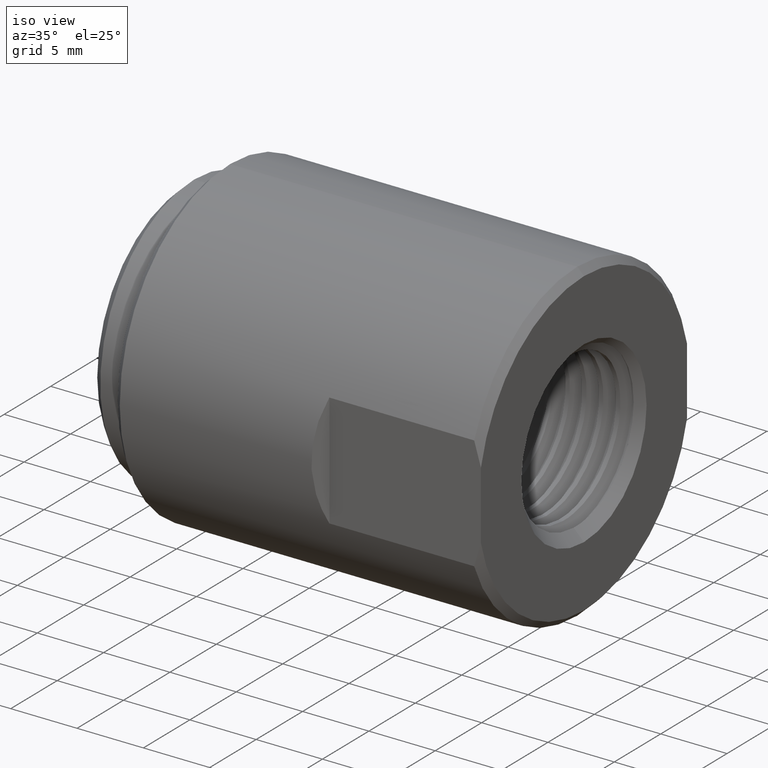
[diagram: clean part render]
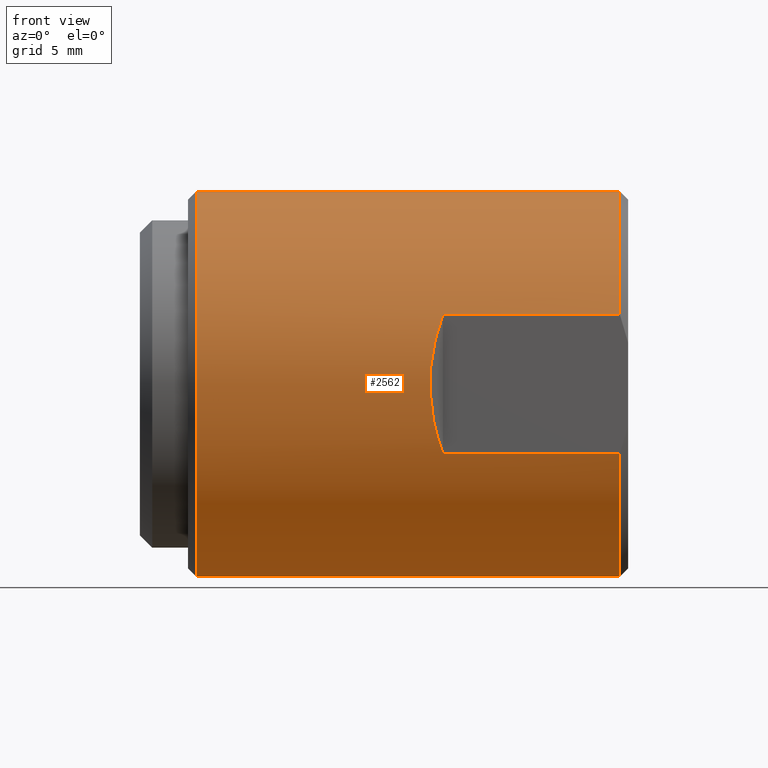
[diagram: tour spotlight — one face highlighted and labeled with its STEP entity id]
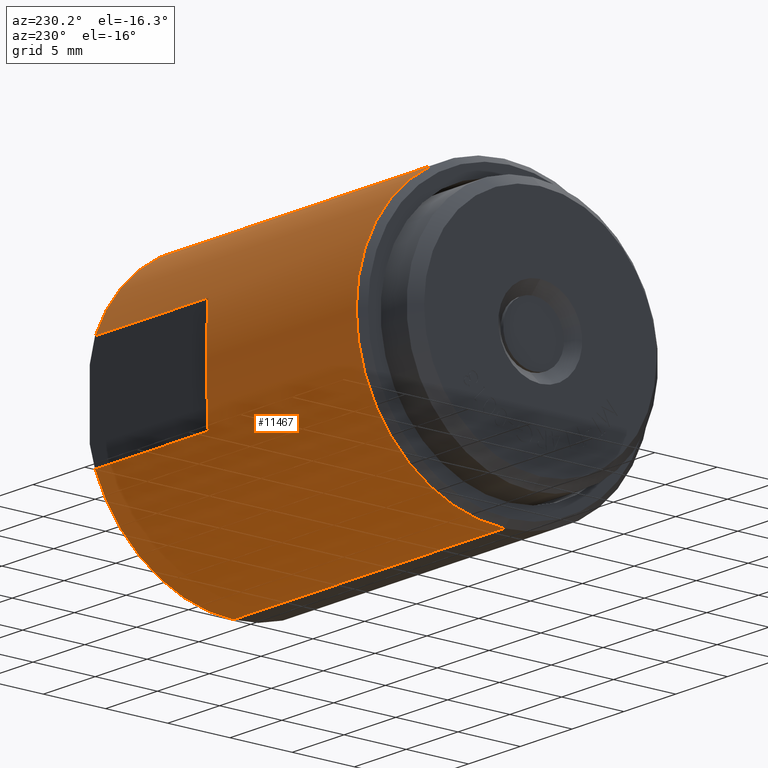
[diagram: tour spotlight — one face highlighted and labeled with its STEP entity id]
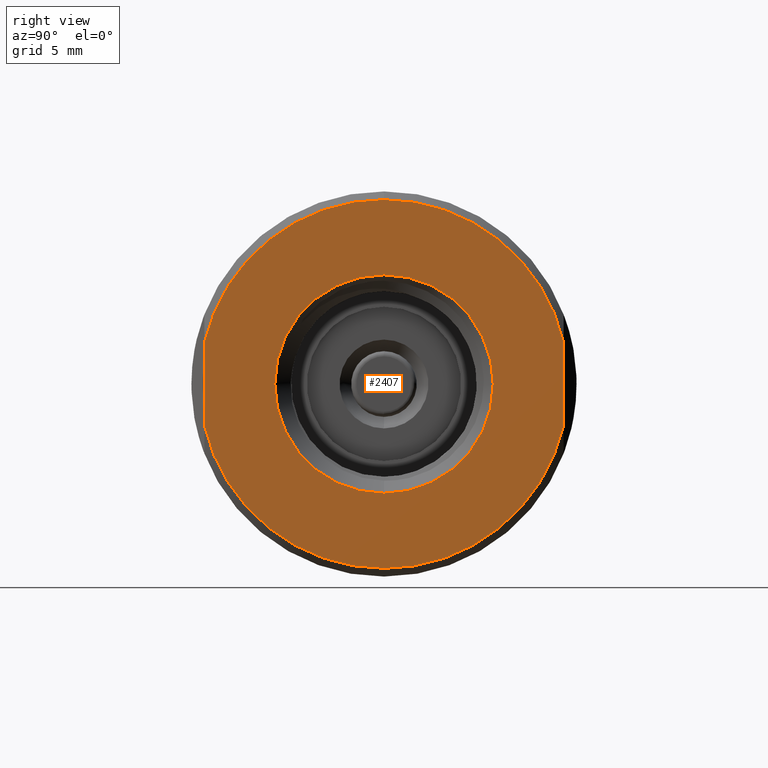
[diagram: tour spotlight — one face highlighted and labeled with its STEP entity id]
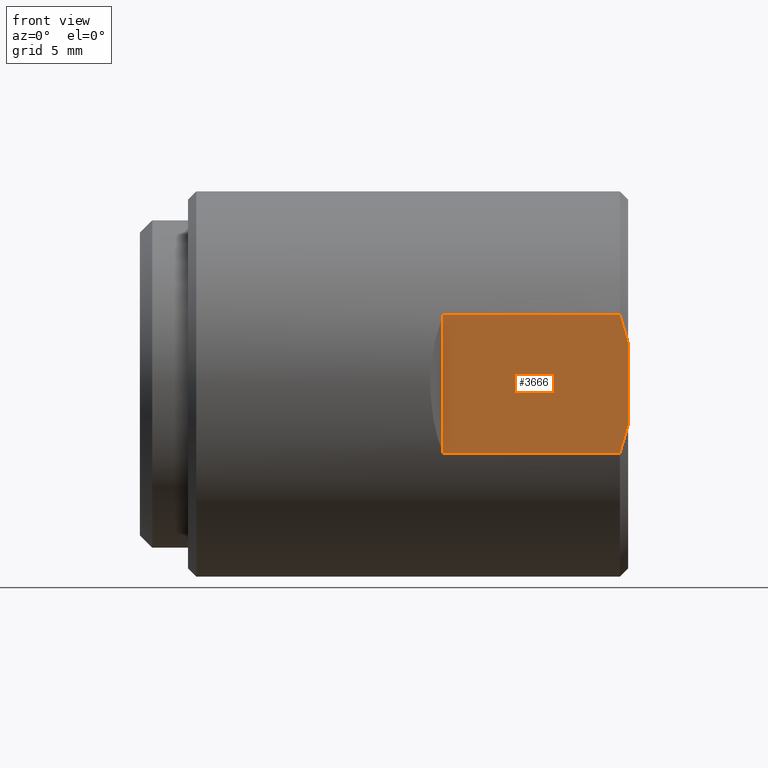
[diagram: tour spotlight — one face highlighted and labeled with its STEP entity id]
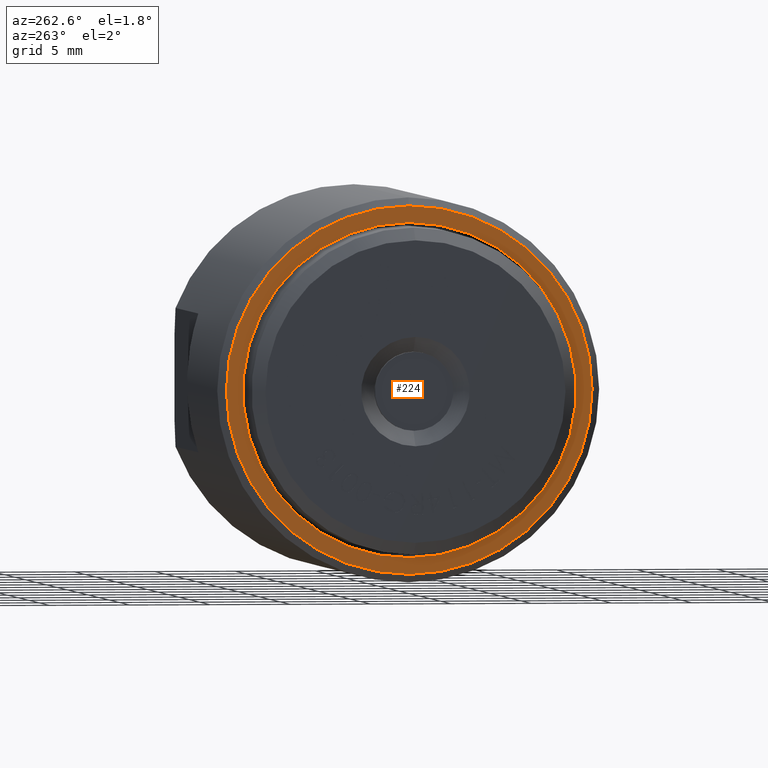
[diagram: tour spotlight — one face highlighted and labeled with its STEP entity id]
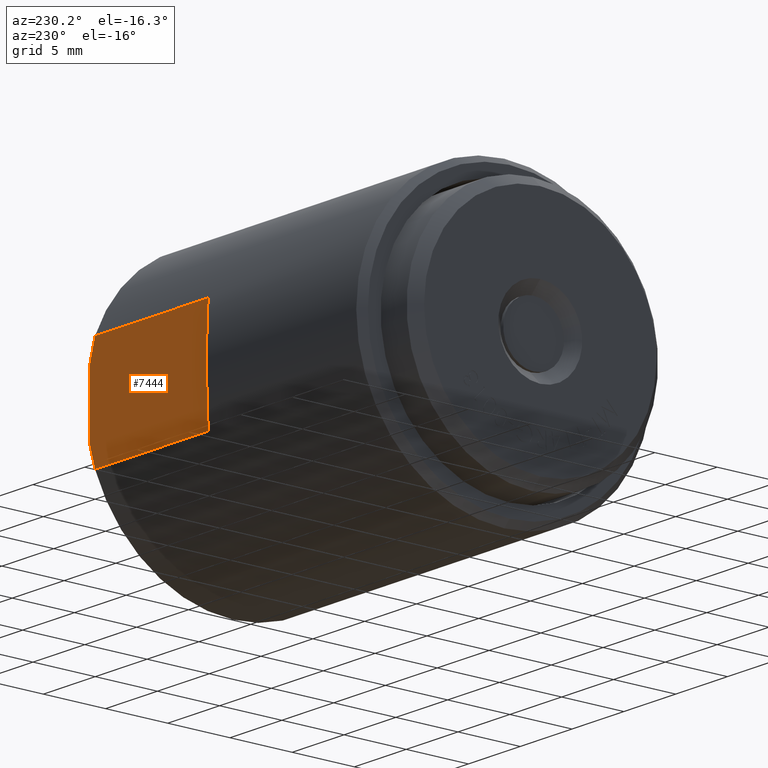
[diagram: tour spotlight — one face highlighted and labeled with its STEP entity id]
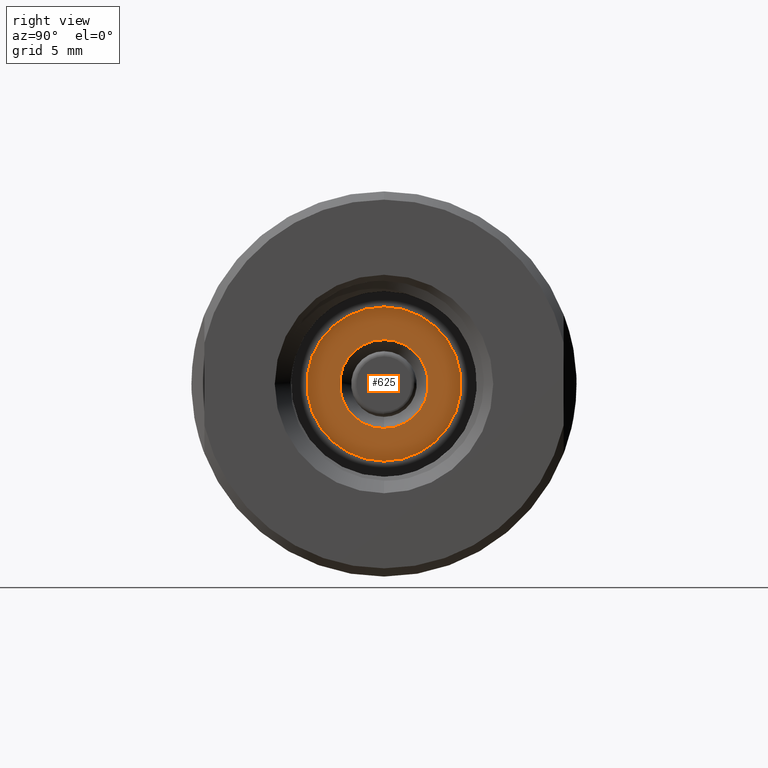
[diagram: tour spotlight — one face highlighted and labeled with its STEP entity id]
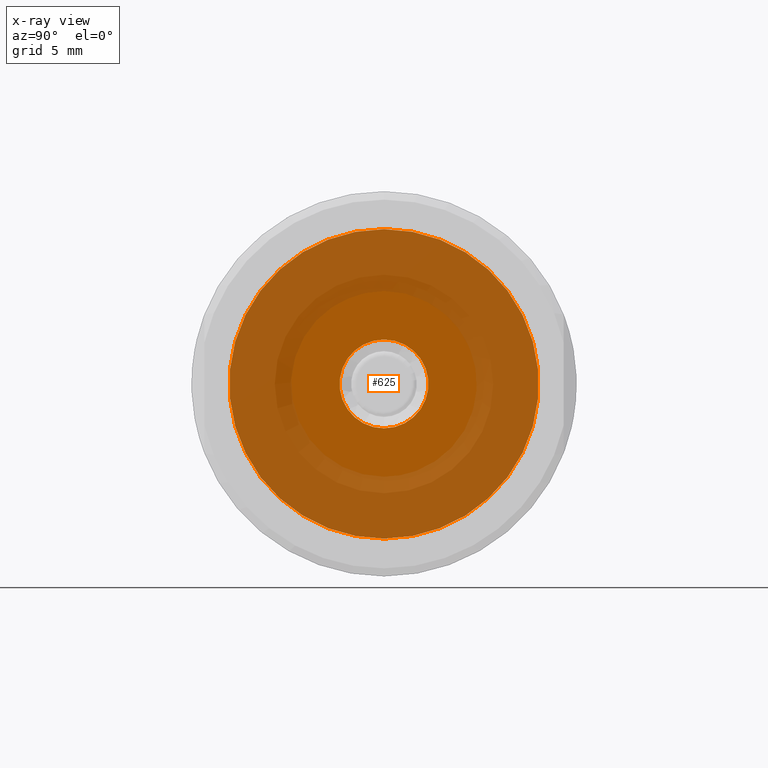
[diagram: x-ray of the same camera — body ghosted, this tour face saturated]
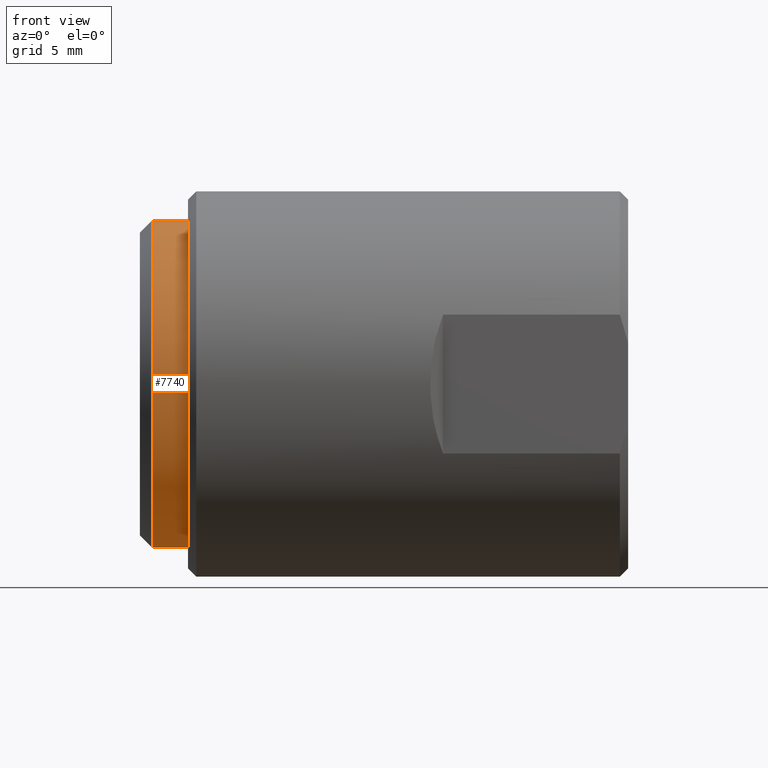
[diagram: tour spotlight — one face highlighted and labeled with its STEP entity id]
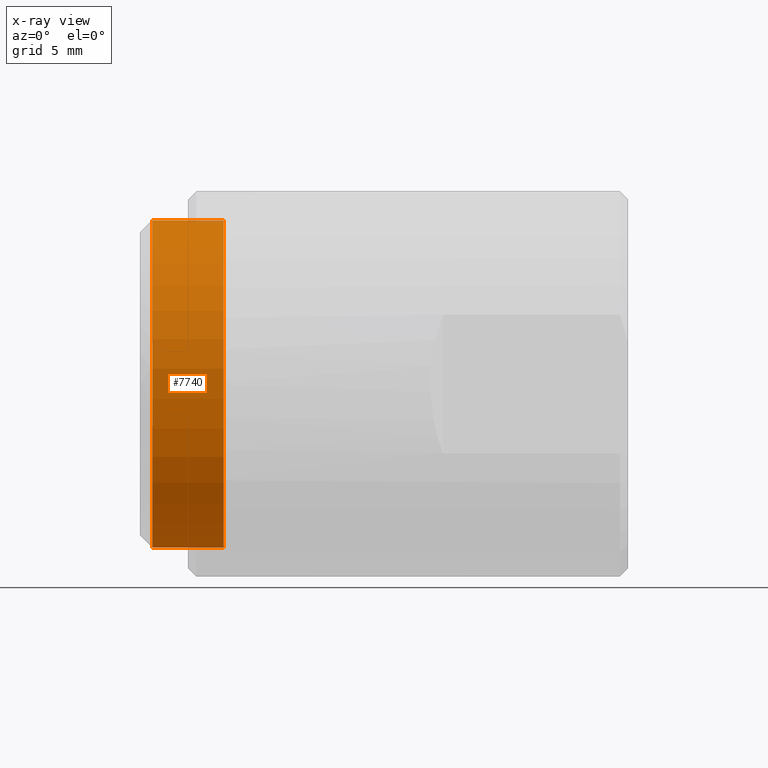
[diagram: x-ray of the same camera — body ghosted, this tour face saturated]
A machine part: a face-by-face anatomy tour. The part has 244 B-rep faces; the first image is the clean iso view, then the 8 largest visible faces are spotlighted one at a time (largest first), each with its STEP entity span.

Face 1 — front view, entity #2562. In plain terms, the highlighted cylindrical surface (partial cylindrical patch) has radius 11.8935 mm, axis along (-1, -0, -0).
Definition (entity closure, byte-faithful):
#31 = VECTOR ( 'NONE', #6852, 39.37007874015748143 ) ;
#125 = VERTEX_POINT ( 'NONE', #10418 ) ;
#211 = EDGE_CURVE ( 'NONE', #7490, #8593, #9959, .T. ) ;
#522 = EDGE_LOOP ( 'NONE', ( #8485, #3252, #1570, #2793, #5571, #8073, #5282, #8355 ) ) ;
#729 = CARTESIAN_POINT ( 'NONE',  ( 0.0000000000000000000, -0.4367499999999999716, -0.1688416417830625460 ) ) ;
#823 = CARTESIAN_POINT ( 'NONE',  ( 0.4244999999999998219, -0.4367499999999999716, 0.1688416417830625460 ) ) ;
#876 = CARTESIAN_POINT ( 'NONE',  ( 0.3820069871436555520, -0.4792430128563444081, 0.05892312186690461251 ) ) ;
#1050 = CARTESIAN_POINT ( 'NONE',  ( 0.4244999999999998219, -0.4367499999999999716, 0.1688416417830625460 ) ) ;
#1090 = DIRECTION ( 'NONE',  ( -1.000000000000000000, -0.0000000000000000000, -0.0000000000000000000 ) ) ;
#1122 = DIRECTION ( 'NONE',  ( 0.0000000000000000000, 0.0000000000000000000, 1.000000000000000000 ) ) ;
#1245 = CARTESIAN_POINT ( 'NONE',  ( 0.8544999999999998153, 5.734408637007481329E-17, -0.4682499999999999996 ) ) ;
#1362 = CARTESIAN_POINT ( 'NONE',  ( 0.8544999999999998153, 0.0000000000000000000, 0.0000000000000000000 ) ) ;
#1570 = ORIENTED_EDGE ( 'NONE', *, *, #6491, .F. ) ;
#1631 = LINE ( 'NONE', #729, #11593 ) ;
#1660 = VERTEX_POINT ( 'NONE', #823 ) ;
#1674 = CARTESIAN_POINT ( 'NONE',  ( 0.4244999999999998219, -0.4367499999999999716, -0.1688416417830625460 ) ) ;
#1718 = CARTESIAN_POINT ( 'NONE',  ( 0.3820069871436555520, -0.4792430128563444081, -0.05892312186690450149 ) ) ;
#1766 = EDGE_CURVE ( 'NONE', #10477, #1660, #10239, .T. ) ;
#2145 = CARTESIAN_POINT ( 'NONE',  ( 0.0000000000000000000, 0.0000000000000000000, 0.0000000000000000000 ) ) ;
#2151 = CIRCLE ( 'NONE', #5374, 0.4682499999999999996 ) ;
#2166 = AXIS2_PLACEMENT_3D ( 'NONE', #10720, #2606, #8064 ) ;
#2259 = FACE_OUTER_BOUND ( 'NONE', #522, .T. ) ;
#2562 = ADVANCED_FACE ( 'NONE', ( #2259 ), #11212, .T. ) ;
#2603 = CARTESIAN_POINT ( 'NONE',  ( -0.1755000000000000171, 0.0000000000000000000, 0.4682499999999999996 ) ) ;
#2606 = DIRECTION ( 'NONE',  ( -1.000000000000000000, -0.0000000000000000000, -0.0000000000000000000 ) ) ;
#2793 = ORIENTED_EDGE ( 'NONE', *, *, #11610, .F. ) ;
#2794 = VECTOR ( 'NONE', #10186, 39.37007874015748143 ) ;
#3252 = ORIENTED_EDGE ( 'NONE', *, *, #211, .T. ) ;
#3685 = CARTESIAN_POINT ( 'NONE',  ( 0.4244999999999998219, -0.4367499999999999716, -0.1688416417830625460 ) ) ;
#3912 = LINE ( 'NONE', #9519, #31 ) ;
#4214 = DIRECTION ( 'NONE',  ( -1.000000000000000000, -0.0000000000000000000, -0.0000000000000000000 ) ) ;
#4297 = AXIS2_PLACEMENT_3D ( 'NONE', #10221, #1090, #7377 ) ;
#4685 = CARTESIAN_POINT ( 'NONE',  ( 0.0000000000000000000, -0.4367499999999999716, 0.1688416417830625460 ) ) ;
#4753 = DIRECTION ( 'NONE',  ( 1.000000000000000000, 0.0000000000000000000, 0.0000000000000000000 ) ) ;
#4758 = CARTESIAN_POINT ( 'NONE',  ( 0.8544999999999998153, -0.4367499999999999716, -0.1688416417830625460 ) ) ;
#4906 = EDGE_CURVE ( 'NONE', #125, #9430, #9553, .T. ) ;
#5282 = ORIENTED_EDGE ( 'NONE', *, *, #7889, .T. ) ;
#5374 = AXIS2_PLACEMENT_3D ( 'NONE', #1362, #11271, #1122 ) ;
#5571 = ORIENTED_EDGE ( 'NONE', *, *, #1766, .F. ) ;
#5759 = DIRECTION ( 'NONE',  ( 0.0000000000000000000, 0.0000000000000000000, 1.000000000000000000 ) ) ;
#6462 = VECTOR ( 'NONE', #4214, 39.37007874015748143 ) ;
#6491 = EDGE_CURVE ( 'NONE', #11191, #8593, #1631, .T. ) ;
#6852 = DIRECTION ( 'NONE',  ( -1.000000000000000000, -0.0000000000000000000, -0.0000000000000000000 ) ) ;
#7377 = DIRECTION ( 'NONE',  ( 0.0000000000000000000, 0.0000000000000000000, 1.000000000000000000 ) ) ;
#7426 = CARTESIAN_POINT ( 'NONE',  ( 0.8544999999999998153, 0.0000000000000000000, 0.4682499999999999996 ) ) ;
#7490 = VERTEX_POINT ( 'NONE', #1245 ) ;
#7520 = AXIS2_PLACEMENT_3D ( 'NONE', #2145, #9487, #5759 ) ;
#7889 = EDGE_CURVE ( 'NONE', #8418, #9430, #8655, .T. ) ;
#8064 = DIRECTION ( 'NONE',  ( 0.0000000000000000000, 0.0000000000000000000, 1.000000000000000000 ) ) ;
#8073 = ORIENTED_EDGE ( 'NONE', *, *, #11023, .T. ) ;
#8104 = EDGE_CURVE ( 'NONE', #7490, #125, #3912, .T. ) ;
#8188 =( BOUNDED_CURVE ( )  B_SPLINE_CURVE ( 3, ( #1050, #876, #1718, #3685 ),
 .UNSPECIFIED., .F., .F. ) 
 B_SPLINE_CURVE_WITH_KNOTS ( ( 4, 4 ),
 ( 5.914295526733510222, 6.652075087625662242 ),
 .UNSPECIFIED. ) 
 CURVE ( )  GEOMETRIC_REPRESENTATION_ITEM ( )  RATIONAL_B_SPLINE_CURVE ( ( 1.000000000000000000, 0.9551521623064600508, 0.9551521623064600508, 1.000000000000000000 ) ) 
 REPRESENTATION_ITEM ( '' )  );
#8355 = ORIENTED_EDGE ( 'NONE', *, *, #4906, .F. ) ;
#8418 = VERTEX_POINT ( 'NONE', #7426 ) ;
#8485 = ORIENTED_EDGE ( 'NONE', *, *, #8104, .F. ) ;
#8593 = VERTEX_POINT ( 'NONE', #4758 ) ;
#8655 = LINE ( 'NONE', #10247, #6462 ) ;
#9072 = CARTESIAN_POINT ( 'NONE',  ( 0.8544999999999998153, -0.4367499999999999716, 0.1688416417830625460 ) ) ;
#9430 = VERTEX_POINT ( 'NONE', #2603 ) ;
#9487 = DIRECTION ( 'NONE',  ( -1.000000000000000000, -0.0000000000000000000, -0.0000000000000000000 ) ) ;
#9519 = CARTESIAN_POINT ( 'NONE',  ( 0.0000000000000000000, 5.734408637007481329E-17, -0.4682499999999999996 ) ) ;
#9553 = CIRCLE ( 'NONE', #2166, 0.4682499999999999996 ) ;
#9959 = CIRCLE ( 'NONE', #4297, 0.4682499999999999996 ) ;
#10186 = DIRECTION ( 'NONE',  ( -1.000000000000000000, -0.0000000000000000000, -0.0000000000000000000 ) ) ;
#10221 = CARTESIAN_POINT ( 'NONE',  ( 0.8544999999999998153, 0.0000000000000000000, 0.0000000000000000000 ) ) ;
#10239 = LINE ( 'NONE', #4685, #2794 ) ;
#10247 = CARTESIAN_POINT ( 'NONE',  ( 0.0000000000000000000, 0.0000000000000000000, 0.4682499999999999996 ) ) ;
#10418 = CARTESIAN_POINT ( 'NONE',  ( -0.1755000000000000171, 5.734408637007481329E-17, -0.4682499999999999996 ) ) ;
#10477 = VERTEX_POINT ( 'NONE', #9072 ) ;
#10720 = CARTESIAN_POINT ( 'NONE',  ( -0.1755000000000000171, 0.0000000000000000000, 0.0000000000000000000 ) ) ;
#11023 = EDGE_CURVE ( 'NONE', #10477, #8418, #2151, .T. ) ;
#11191 = VERTEX_POINT ( 'NONE', #1674 ) ;
#11212 = CYLINDRICAL_SURFACE ( 'NONE', #7520, 0.4682499999999999996 ) ;
#11271 = DIRECTION ( 'NONE',  ( -1.000000000000000000, -0.0000000000000000000, -0.0000000000000000000 ) ) ;
#11593 = VECTOR ( 'NONE', #4753, 39.37007874015748143 ) ;
#11610 = EDGE_CURVE ( 'NONE', #1660, #11191, #8188, .T. ) ;

Face 2 — auxiliary view, entity #11467. In plain terms, the highlighted cylindrical surface (partial cylindrical patch) has radius 11.8935 mm, axis along (-1, -0, -0).
Definition (entity closure, byte-faithful):
#31 = VECTOR ( 'NONE', #6852, 39.37007874015748143 ) ;
#125 = VERTEX_POINT ( 'NONE', #10418 ) ;
#525 = ORIENTED_EDGE ( 'NONE', *, *, #7889, .F. ) ;
#689 = ORIENTED_EDGE ( 'NONE', *, *, #3631, .F. ) ;
#837 = CARTESIAN_POINT ( 'NONE',  ( 0.0000000000000000000, 0.4367499999999999716, -0.1688416417830625460 ) ) ;
#982 = AXIS2_PLACEMENT_3D ( 'NONE', #2497, #11388, #2440 ) ;
#1206 = EDGE_CURVE ( 'NONE', #9420, #3863, #8968, .T. ) ;
#1245 = CARTESIAN_POINT ( 'NONE',  ( 0.8544999999999998153, 5.734408637007481329E-17, -0.4682499999999999996 ) ) ;
#1350 =( BOUNDED_CURVE ( )  B_SPLINE_CURVE ( 3, ( #5719, #7609, #3902, #3116 ),
 .UNSPECIFIED., .F., .F. ) 
 B_SPLINE_CURVE_WITH_KNOTS ( ( 4, 4 ),
 ( 5.914295526733510222, 6.652075087625662242 ),
 .UNSPECIFIED. ) 
 CURVE ( )  GEOMETRIC_REPRESENTATION_ITEM ( )  RATIONAL_B_SPLINE_CURVE ( ( 1.000000000000000000, 0.9551521623064600508, 0.9551521623064600508, 1.000000000000000000 ) ) 
 REPRESENTATION_ITEM ( '' )  );
#1616 = DIRECTION ( 'NONE',  ( 0.0000000000000000000, 0.0000000000000000000, 1.000000000000000000 ) ) ;
#1722 = VERTEX_POINT ( 'NONE', #9124 ) ;
#2020 = CIRCLE ( 'NONE', #8086, 0.4682499999999999996 ) ;
#2440 = DIRECTION ( 'NONE',  ( 0.0000000000000000000, 0.0000000000000000000, 1.000000000000000000 ) ) ;
#2497 = CARTESIAN_POINT ( 'NONE',  ( 0.0000000000000000000, 0.0000000000000000000, 0.0000000000000000000 ) ) ;
#2507 = DIRECTION ( 'NONE',  ( -1.000000000000000000, -0.0000000000000000000, -0.0000000000000000000 ) ) ;
#2603 = CARTESIAN_POINT ( 'NONE',  ( -0.1755000000000000171, 0.0000000000000000000, 0.4682499999999999996 ) ) ;
#2615 = CYLINDRICAL_SURFACE ( 'NONE', #982, 0.4682499999999999996 ) ;
#2618 = CIRCLE ( 'NONE', #11122, 0.4682499999999999996 ) ;
#2704 = ORIENTED_EDGE ( 'NONE', *, *, #1206, .F. ) ;
#2762 = EDGE_CURVE ( 'NONE', #8418, #7931, #2618, .T. ) ;
#3116 = CARTESIAN_POINT ( 'NONE',  ( 0.4244999999999998219, 0.4367499999999999716, 0.1688416417830625460 ) ) ;
#3631 = EDGE_CURVE ( 'NONE', #3863, #1722, #1350, .T. ) ;
#3665 = CARTESIAN_POINT ( 'NONE',  ( -0.1755000000000000171, 0.0000000000000000000, 0.0000000000000000000 ) ) ;
#3863 = VERTEX_POINT ( 'NONE', #9659 ) ;
#3902 = CARTESIAN_POINT ( 'NONE',  ( 0.3820069871436555520, 0.4792430128563444081, 0.05892312186690450149 ) ) ;
#3912 = LINE ( 'NONE', #9519, #31 ) ;
#4023 = CARTESIAN_POINT ( 'NONE',  ( 0.0000000000000000000, 0.4367499999999999716, 0.1688416417830625460 ) ) ;
#4214 = DIRECTION ( 'NONE',  ( -1.000000000000000000, -0.0000000000000000000, -0.0000000000000000000 ) ) ;
#4308 = CARTESIAN_POINT ( 'NONE',  ( 0.8544999999999998153, 0.0000000000000000000, 0.0000000000000000000 ) ) ;
#4385 = CARTESIAN_POINT ( 'NONE',  ( 0.8544999999999998153, 0.4367499999999999716, -0.1688416417830625460 ) ) ;
#4976 = EDGE_LOOP ( 'NONE', ( #11313, #8380, #8676, #525, #8005, #6423, #689, #2704 ) ) ;
#5202 = EDGE_CURVE ( 'NONE', #9430, #125, #2020, .T. ) ;
#5274 = CARTESIAN_POINT ( 'NONE',  ( 0.8544999999999998153, 0.4367499999999999716, 0.1688416417830625460 ) ) ;
#5524 = AXIS2_PLACEMENT_3D ( 'NONE', #4308, #9923, #6245 ) ;
#5719 = CARTESIAN_POINT ( 'NONE',  ( 0.4244999999999998219, 0.4367499999999999716, -0.1688416417830625460 ) ) ;
#6081 = CIRCLE ( 'NONE', #5524, 0.4682499999999999996 ) ;
#6245 = DIRECTION ( 'NONE',  ( 0.0000000000000000000, 0.0000000000000000000, 1.000000000000000000 ) ) ;
#6423 = ORIENTED_EDGE ( 'NONE', *, *, #8118, .F. ) ;
#6462 = VECTOR ( 'NONE', #4214, 39.37007874015748143 ) ;
#6852 = DIRECTION ( 'NONE',  ( -1.000000000000000000, -0.0000000000000000000, -0.0000000000000000000 ) ) ;
#7029 = DIRECTION ( 'NONE',  ( 0.0000000000000000000, 0.0000000000000000000, 1.000000000000000000 ) ) ;
#7382 = EDGE_CURVE ( 'NONE', #9420, #7490, #6081, .T. ) ;
#7426 = CARTESIAN_POINT ( 'NONE',  ( 0.8544999999999998153, 0.0000000000000000000, 0.4682499999999999996 ) ) ;
#7490 = VERTEX_POINT ( 'NONE', #1245 ) ;
#7508 = DIRECTION ( 'NONE',  ( 1.000000000000000000, 0.0000000000000000000, 0.0000000000000000000 ) ) ;
#7609 = CARTESIAN_POINT ( 'NONE',  ( 0.3820069871436555520, 0.4792430128563444081, -0.05892312186690461251 ) ) ;
#7836 = FACE_OUTER_BOUND ( 'NONE', #4976, .T. ) ;
#7889 = EDGE_CURVE ( 'NONE', #8418, #9430, #8655, .T. ) ;
#7931 = VERTEX_POINT ( 'NONE', #5274 ) ;
#8005 = ORIENTED_EDGE ( 'NONE', *, *, #2762, .T. ) ;
#8086 = AXIS2_PLACEMENT_3D ( 'NONE', #3665, #9697, #7029 ) ;
#8091 = DIRECTION ( 'NONE',  ( -1.000000000000000000, -0.0000000000000000000, -0.0000000000000000000 ) ) ;
#8104 = EDGE_CURVE ( 'NONE', #7490, #125, #3912, .T. ) ;
#8118 = EDGE_CURVE ( 'NONE', #1722, #7931, #8577, .T. ) ;
#8380 = ORIENTED_EDGE ( 'NONE', *, *, #8104, .T. ) ;
#8418 = VERTEX_POINT ( 'NONE', #7426 ) ;
#8577 = LINE ( 'NONE', #4023, #8748 ) ;
#8655 = LINE ( 'NONE', #10247, #6462 ) ;
#8676 = ORIENTED_EDGE ( 'NONE', *, *, #5202, .F. ) ;
#8748 = VECTOR ( 'NONE', #7508, 39.37007874015748143 ) ;
#8968 = LINE ( 'NONE', #837, #11298 ) ;
#9124 = CARTESIAN_POINT ( 'NONE',  ( 0.4244999999999998219, 0.4367499999999999716, 0.1688416417830625460 ) ) ;
#9420 = VERTEX_POINT ( 'NONE', #4385 ) ;
#9430 = VERTEX_POINT ( 'NONE', #2603 ) ;
#9519 = CARTESIAN_POINT ( 'NONE',  ( 0.0000000000000000000, 5.734408637007481329E-17, -0.4682499999999999996 ) ) ;
#9612 = CARTESIAN_POINT ( 'NONE',  ( 0.8544999999999998153, 0.0000000000000000000, 0.0000000000000000000 ) ) ;
#9659 = CARTESIAN_POINT ( 'NONE',  ( 0.4244999999999998219, 0.4367499999999999716, -0.1688416417830625460 ) ) ;
#9697 = DIRECTION ( 'NONE',  ( -1.000000000000000000, -0.0000000000000000000, -0.0000000000000000000 ) ) ;
#9923 = DIRECTION ( 'NONE',  ( -1.000000000000000000, -0.0000000000000000000, -0.0000000000000000000 ) ) ;
#10247 = CARTESIAN_POINT ( 'NONE',  ( 0.0000000000000000000, 0.0000000000000000000, 0.4682499999999999996 ) ) ;
#10418 = CARTESIAN_POINT ( 'NONE',  ( -0.1755000000000000171, 5.734408637007481329E-17, -0.4682499999999999996 ) ) ;
#11122 = AXIS2_PLACEMENT_3D ( 'NONE', #9612, #2507, #1616 ) ;
#11298 = VECTOR ( 'NONE', #8091, 39.37007874015748143 ) ;
#11313 = ORIENTED_EDGE ( 'NONE', *, *, #7382, .T. ) ;
#11388 = DIRECTION ( 'NONE',  ( -1.000000000000000000, -0.0000000000000000000, -0.0000000000000000000 ) ) ;
#11467 = ADVANCED_FACE ( 'NONE', ( #7836 ), #2615, .T. ) ;

Face 3 — right view, entity #2407. In plain terms, the highlighted planar face has unit normal (1, 0, 0).
Definition (entity closure, byte-faithful):
#959 = FACE_BOUND ( 'NONE', #4675, .T. ) ;
#1619 = DIRECTION ( 'NONE',  ( -1.000000000000000000, -0.0000000000000000000, -0.0000000000000000000 ) ) ;
#1862 = DIRECTION ( 'NONE',  ( 1.000000000000000000, 0.0000000000000000000, 0.0000000000000000000 ) ) ;
#1954 = VERTEX_POINT ( 'NONE', #4443 ) ;
#1995 = DIRECTION ( 'NONE',  ( 0.0000000000000000000, 0.0000000000000000000, 1.000000000000000000 ) ) ;
#2407 = ADVANCED_FACE ( 'NONE', ( #9204, #959 ), #6472, .T. ) ;
#2441 = ORIENTED_EDGE ( 'NONE', *, *, #8839, .T. ) ;
#2538 = LINE ( 'NONE', #11618, #11004 ) ;
#2617 = VERTEX_POINT ( 'NONE', #11160 ) ;
#2665 = DIRECTION ( 'NONE',  ( -1.000000000000000000, -0.0000000000000000000, -0.0000000000000000000 ) ) ;
#2671 = VERTEX_POINT ( 'NONE', #7713 ) ;
#2697 = AXIS2_PLACEMENT_3D ( 'NONE', #4351, #1619, #5292 ) ;
#2907 = ORIENTED_EDGE ( 'NONE', *, *, #8466, .T. ) ;
#3649 = EDGE_CURVE ( 'NONE', #4473, #2671, #10878, .T. ) ;
#3903 = EDGE_CURVE ( 'NONE', #6610, #1954, #10486, .T. ) ;
#3940 = CARTESIAN_POINT ( 'NONE',  ( 0.8744999999999999440, 0.4367499999999999716, -0.4682499999999999996 ) ) ;
#4200 = VECTOR ( 'NONE', #7539, 39.37007874015748143 ) ;
#4351 = CARTESIAN_POINT ( 'NONE',  ( 0.8744999999999999440, 0.0000000000000000000, 0.0000000000000000000 ) ) ;
#4443 = CARTESIAN_POINT ( 'NONE',  ( 0.8744999999999999440, 0.4367499999999999716, 0.1008835962879991721 ) ) ;
#4473 = VERTEX_POINT ( 'NONE', #6178 ) ;
#4593 = DIRECTION ( 'NONE',  ( 0.0000000000000000000, 0.0000000000000000000, -1.000000000000000000 ) ) ;
#4657 = CARTESIAN_POINT ( 'NONE',  ( 0.8744999999999999440, 0.0000000000000000000, 0.0000000000000000000 ) ) ;
#4675 = EDGE_LOOP ( 'NONE', ( #2441, #2907 ) ) ;
#4960 = CIRCLE ( 'NONE', #10454, 0.2656250000000001665 ) ;
#5044 = CARTESIAN_POINT ( 'NONE',  ( 0.8744999999999999440, 0.0000000000000000000, 0.4482499999999999818 ) ) ;
#5292 = DIRECTION ( 'NONE',  ( 0.0000000000000000000, 0.0000000000000000000, 1.000000000000000000 ) ) ;
#5328 = DIRECTION ( 'NONE',  ( 0.0000000000000000000, 0.0000000000000000000, 1.000000000000000000 ) ) ;
#5862 = CARTESIAN_POINT ( 'NONE',  ( 0.8744999999999999440, 0.0000000000000000000, 0.0000000000000000000 ) ) ;
#6116 = ORIENTED_EDGE ( 'NONE', *, *, #3903, .F. ) ;
#6178 = CARTESIAN_POINT ( 'NONE',  ( 0.8744999999999999440, 0.4367499999999999716, -0.1008835962879991582 ) ) ;
#6322 = ORIENTED_EDGE ( 'NONE', *, *, #7530, .F. ) ;
#6355 = CARTESIAN_POINT ( 'NONE',  ( 0.8744999999999999440, -0.4367499999999999716, 0.1008835962879991582 ) ) ;
#6472 = PLANE ( 'NONE',  #8857 ) ;
#6488 = DIRECTION ( 'NONE',  ( -1.000000000000000000, -0.0000000000000000000, -0.0000000000000000000 ) ) ;
#6610 = VERTEX_POINT ( 'NONE', #5044 ) ;
#6657 = EDGE_CURVE ( 'NONE', #4473, #1954, #8727, .T. ) ;
#6664 = AXIS2_PLACEMENT_3D ( 'NONE', #4657, #9263, #8440 ) ;
#6759 = EDGE_LOOP ( 'NONE', ( #8268, #6116, #6322, #11743, #8701 ) ) ;
#6811 = DIRECTION ( 'NONE',  ( -1.000000000000000000, -0.0000000000000000000, -0.0000000000000000000 ) ) ;
#6904 = EDGE_CURVE ( 'NONE', #2671, #10910, #2538, .T. ) ;
#7163 = CARTESIAN_POINT ( 'NONE',  ( 0.8744999999999999440, 0.0000000000000000000, 0.0000000000000000000 ) ) ;
#7530 = EDGE_CURVE ( 'NONE', #10910, #6610, #8367, .T. ) ;
#7539 = DIRECTION ( 'NONE',  ( -0.0000000000000000000, -0.0000000000000000000, 1.000000000000000000 ) ) ;
#7611 = CIRCLE ( 'NONE', #6664, 0.2656250000000001665 ) ;
#7713 = CARTESIAN_POINT ( 'NONE',  ( 0.8744999999999999440, -0.4367499999999999716, -0.1008835962879991582 ) ) ;
#7834 = DIRECTION ( 'NONE',  ( 0.0000000000000000000, 0.0000000000000000000, 1.000000000000000000 ) ) ;
#8268 = ORIENTED_EDGE ( 'NONE', *, *, #6657, .T. ) ;
#8367 = CIRCLE ( 'NONE', #2697, 0.4482499999999999818 ) ;
#8440 = DIRECTION ( 'NONE',  ( 0.0000000000000000000, 0.0000000000000000000, 1.000000000000000000 ) ) ;
#8466 = EDGE_CURVE ( 'NONE', #9854, #2617, #7611, .T. ) ;
#8701 = ORIENTED_EDGE ( 'NONE', *, *, #3649, .F. ) ;
#8727 = LINE ( 'NONE', #3940, #4200 ) ;
#8839 = EDGE_CURVE ( 'NONE', #2617, #9854, #4960, .T. ) ;
#8857 = AXIS2_PLACEMENT_3D ( 'NONE', #9979, #1862, #4593 ) ;
#8874 = CARTESIAN_POINT ( 'NONE',  ( 0.8744999999999999440, 3.252968060235159152E-17, 0.2656250000000001665 ) ) ;
#9204 = FACE_OUTER_BOUND ( 'NONE', #6759, .T. ) ;
#9263 = DIRECTION ( 'NONE',  ( -1.000000000000000000, -0.0000000000000000000, -0.0000000000000000000 ) ) ;
#9328 = CARTESIAN_POINT ( 'NONE',  ( 0.8744999999999999440, 0.0000000000000000000, 0.0000000000000000000 ) ) ;
#9854 = VERTEX_POINT ( 'NONE', #8874 ) ;
#9979 = CARTESIAN_POINT ( 'NONE',  ( 0.8744999999999999440, 0.0000000000000000000, 0.0000000000000000000 ) ) ;
#10115 = AXIS2_PLACEMENT_3D ( 'NONE', #9328, #6488, #1995 ) ;
#10454 = AXIS2_PLACEMENT_3D ( 'NONE', #5862, #6811, #7834 ) ;
#10486 = CIRCLE ( 'NONE', #11068, 0.4482499999999999818 ) ;
#10878 = CIRCLE ( 'NONE', #10115, 0.4482499999999999818 ) ;
#10910 = VERTEX_POINT ( 'NONE', #6355 ) ;
#11004 = VECTOR ( 'NONE', #11735, 39.37007874015748143 ) ;
#11068 = AXIS2_PLACEMENT_3D ( 'NONE', #7163, #2665, #5328 ) ;
#11160 = CARTESIAN_POINT ( 'NONE',  ( 0.8744999999999999440, 0.0000000000000000000, -0.2656250000000001665 ) ) ;
#11618 = CARTESIAN_POINT ( 'NONE',  ( 0.8744999999999999440, -0.4367499999999999716, -0.4682499999999999996 ) ) ;
#11735 = DIRECTION ( 'NONE',  ( -0.0000000000000000000, -0.0000000000000000000, 1.000000000000000000 ) ) ;
#11743 = ORIENTED_EDGE ( 'NONE', *, *, #6904, .F. ) ;

Face 4 — front view, entity #3666. In plain terms, the highlighted planar face has unit normal (0, 1, 0).
Definition (entity closure, byte-faithful):
#386 = EDGE_CURVE ( 'NONE', #11191, #1660, #1567, .T. ) ;
#564 = ORIENTED_EDGE ( 'NONE', *, *, #6904, .T. ) ;
#729 = CARTESIAN_POINT ( 'NONE',  ( 0.0000000000000000000, -0.4367499999999999716, -0.1688416417830625460 ) ) ;
#823 = CARTESIAN_POINT ( 'NONE',  ( 0.4244999999999998219, -0.4367499999999999716, 0.1688416417830625460 ) ) ;
#1205 = CARTESIAN_POINT ( 'NONE',  ( 0.8744999999999999440, -0.4367499999999999716, -0.4682499999999999996 ) ) ;
#1567 = LINE ( 'NONE', #2274, #8080 ) ;
#1631 = LINE ( 'NONE', #729, #11593 ) ;
#1660 = VERTEX_POINT ( 'NONE', #823 ) ;
#1674 = CARTESIAN_POINT ( 'NONE',  ( 0.4244999999999998219, -0.4367499999999999716, -0.1688416417830625460 ) ) ;
#1766 = EDGE_CURVE ( 'NONE', #10477, #1660, #10239, .T. ) ;
#2163 = FACE_OUTER_BOUND ( 'NONE', #6183, .T. ) ;
#2274 = CARTESIAN_POINT ( 'NONE',  ( 0.4244999999999998219, -0.4367499999999999716, -0.4682499999999999996 ) ) ;
#2531 = ORIENTED_EDGE ( 'NONE', *, *, #386, .F. ) ;
#2538 = LINE ( 'NONE', #11618, #11004 ) ;
#2671 = VERTEX_POINT ( 'NONE', #7713 ) ;
#2794 = VECTOR ( 'NONE', #10186, 39.37007874015748143 ) ;
#3014 = B_SPLINE_CURVE_WITH_KNOTS ( 'NONE', 3,
 ( #6839, #9568, #8868, #10816 ),
 .UNSPECIFIED., .F., .F.,
 ( 4, 4 ),
 ( 0.02422312462512930462, 0.02601897598591373928 ),
 .UNSPECIFIED. ) ;
#3544 = ORIENTED_EDGE ( 'NONE', *, *, #1766, .T. ) ;
#3666 = ADVANCED_FACE ( 'NONE', ( #2163 ), #7498, .F. ) ;
#3788 = CARTESIAN_POINT ( 'NONE',  ( 0.8744999999999999440, -0.4367499999999999716, 0.1008835962879991582 ) ) ;
#3843 = CARTESIAN_POINT ( 'NONE',  ( 0.8693122336957028740, -0.4367499999999999716, 0.1239340854801530278 ) ) ;
#4438 = EDGE_CURVE ( 'NONE', #10910, #10477, #7126, .T. ) ;
#4685 = CARTESIAN_POINT ( 'NONE',  ( 0.0000000000000000000, -0.4367499999999999716, 0.1688416417830625460 ) ) ;
#4753 = DIRECTION ( 'NONE',  ( 1.000000000000000000, 0.0000000000000000000, 0.0000000000000000000 ) ) ;
#4758 = CARTESIAN_POINT ( 'NONE',  ( 0.8544999999999998153, -0.4367499999999999716, -0.1688416417830625460 ) ) ;
#5775 = DIRECTION ( 'NONE',  ( 0.0000000000000000000, -0.0000000000000000000, 1.000000000000000000 ) ) ;
#5883 = ORIENTED_EDGE ( 'NONE', *, *, #6491, .T. ) ;
#6183 = EDGE_LOOP ( 'NONE', ( #5883, #11317, #564, #11514, #3544, #2531 ) ) ;
#6355 = CARTESIAN_POINT ( 'NONE',  ( 0.8744999999999999440, -0.4367499999999999716, 0.1008835962879991582 ) ) ;
#6491 = EDGE_CURVE ( 'NONE', #11191, #8593, #1631, .T. ) ;
#6839 = CARTESIAN_POINT ( 'NONE',  ( 0.8544999999999998153, -0.4367499999999999716, -0.1688416417830625460 ) ) ;
#6904 = EDGE_CURVE ( 'NONE', #2671, #10910, #2538, .T. ) ;
#7126 = B_SPLINE_CURVE_WITH_KNOTS ( 'NONE', 3,
 ( #3788, #3843, #7440, #10388 ),
 .UNSPECIFIED., .F., .F.,
 ( 4, 4 ),
 ( 0.03118282124195215568, 0.03298364478054569005 ),
 .UNSPECIFIED. ) ;
#7303 = EDGE_CURVE ( 'NONE', #8593, #2671, #3014, .T. ) ;
#7440 = CARTESIAN_POINT ( 'NONE',  ( 0.8625353550136163339, -0.4367499999999999716, 0.1465571215344366462 ) ) ;
#7498 = PLANE ( 'NONE',  #8050 ) ;
#7713 = CARTESIAN_POINT ( 'NONE',  ( 0.8744999999999999440, -0.4367499999999999716, -0.1008835962879991582 ) ) ;
#8050 = AXIS2_PLACEMENT_3D ( 'NONE', #1205, #10282, #5775 ) ;
#8080 = VECTOR ( 'NONE', #9504, 39.37007874015748143 ) ;
#8593 = VERTEX_POINT ( 'NONE', #4758 ) ;
#8868 = CARTESIAN_POINT ( 'NONE',  ( 0.8692828730374965174, -0.4367499999999999716, -0.1240645419222727031 ) ) ;
#9072 = CARTESIAN_POINT ( 'NONE',  ( 0.8544999999999998153, -0.4367499999999999716, 0.1688416417830625460 ) ) ;
#9504 = DIRECTION ( 'NONE',  ( -0.0000000000000000000, -0.0000000000000000000, 1.000000000000000000 ) ) ;
#9568 = CARTESIAN_POINT ( 'NONE',  ( 0.8624818999563695909, -0.4367499999999999716, -0.1467053689116325221 ) ) ;
#10186 = DIRECTION ( 'NONE',  ( -1.000000000000000000, -0.0000000000000000000, -0.0000000000000000000 ) ) ;
#10239 = LINE ( 'NONE', #4685, #2794 ) ;
#10282 = DIRECTION ( 'NONE',  ( 0.0000000000000000000, 1.000000000000000000, 0.0000000000000000000 ) ) ;
#10388 = CARTESIAN_POINT ( 'NONE',  ( 0.8544999999999998153, -0.4367499999999999716, 0.1688416417830625460 ) ) ;
#10477 = VERTEX_POINT ( 'NONE', #9072 ) ;
#10816 = CARTESIAN_POINT ( 'NONE',  ( 0.8744999999999999440, -0.4367499999999999716, -0.1008835962879991582 ) ) ;
#10910 = VERTEX_POINT ( 'NONE', #6355 ) ;
#11004 = VECTOR ( 'NONE', #11735, 39.37007874015748143 ) ;
#11191 = VERTEX_POINT ( 'NONE', #1674 ) ;
#11317 = ORIENTED_EDGE ( 'NONE', *, *, #7303, .T. ) ;
#11514 = ORIENTED_EDGE ( 'NONE', *, *, #4438, .T. ) ;
#11593 = VECTOR ( 'NONE', #4753, 39.37007874015748143 ) ;
#11618 = CARTESIAN_POINT ( 'NONE',  ( 0.8744999999999999440, -0.4367499999999999716, -0.4682499999999999996 ) ) ;
#11735 = DIRECTION ( 'NONE',  ( -0.0000000000000000000, -0.0000000000000000000, 1.000000000000000000 ) ) ;

Face 5 — auxiliary view, entity #224. In plain terms, the highlighted planar face has unit normal (-1, 0, -0).
Definition (entity closure, byte-faithful):
#224 = ADVANCED_FACE ( 'NONE', ( #2101, #3900 ), #6659, .T. ) ;
#411 = DIRECTION ( 'NONE',  ( -1.000000000000000000, -0.0000000000000000000, -0.0000000000000000000 ) ) ;
#433 = AXIS2_PLACEMENT_3D ( 'NONE', #10962, #2842, #6442 ) ;
#449 = VERTEX_POINT ( 'NONE', #8040 ) ;
#1202 = DIRECTION ( 'NONE',  ( -0.0000000000000000000, 0.0000000000000000000, 1.000000000000000000 ) ) ;
#1942 = EDGE_CURVE ( 'NONE', #449, #3272, #5436, .T. ) ;
#2101 = FACE_OUTER_BOUND ( 'NONE', #4327, .T. ) ;
#2119 = DIRECTION ( 'NONE',  ( 0.0000000000000000000, 0.0000000000000000000, 1.000000000000000000 ) ) ;
#2410 = AXIS2_PLACEMENT_3D ( 'NONE', #7040, #6260, #6208 ) ;
#2453 = DIRECTION ( 'NONE',  ( 0.0000000000000000000, 0.0000000000000000000, 1.000000000000000000 ) ) ;
#2842 = DIRECTION ( 'NONE',  ( -1.000000000000000000, -0.0000000000000000000, -0.0000000000000000000 ) ) ;
#2975 = CARTESIAN_POINT ( 'NONE',  ( -0.1955000000000000071, 0.0000000000000000000, 0.4077499999999998903 ) ) ;
#3030 = CARTESIAN_POINT ( 'NONE',  ( -0.1955000000000000071, 4.993497323523332430E-17, -0.4077499999999998903 ) ) ;
#3112 = DIRECTION ( 'NONE',  ( -1.000000000000000000, 0.0000000000000000000, -0.0000000000000000000 ) ) ;
#3125 = EDGE_CURVE ( 'NONE', #3747, #7686, #7844, .T. ) ;
#3272 = VERTEX_POINT ( 'NONE', #11244 ) ;
#3716 = ORIENTED_EDGE ( 'NONE', *, *, #8613, .T. ) ;
#3734 = AXIS2_PLACEMENT_3D ( 'NONE', #8505, #3112, #1202 ) ;
#3747 = VERTEX_POINT ( 'NONE', #3030 ) ;
#3900 = FACE_BOUND ( 'NONE', #11187, .T. ) ;
#4147 = ORIENTED_EDGE ( 'NONE', *, *, #1942, .T. ) ;
#4327 = EDGE_LOOP ( 'NONE', ( #4147, #3716 ) ) ;
#5436 = CIRCLE ( 'NONE', #2410, 0.4482499999999999818 ) ;
#6208 = DIRECTION ( 'NONE',  ( 0.0000000000000000000, 0.0000000000000000000, 1.000000000000000000 ) ) ;
#6260 = DIRECTION ( 'NONE',  ( -1.000000000000000000, -0.0000000000000000000, -0.0000000000000000000 ) ) ;
#6442 = DIRECTION ( 'NONE',  ( 0.0000000000000000000, 0.0000000000000000000, 1.000000000000000000 ) ) ;
#6659 = PLANE ( 'NONE',  #3734 ) ;
#7040 = CARTESIAN_POINT ( 'NONE',  ( -0.1955000000000000071, 0.0000000000000000000, 0.0000000000000000000 ) ) ;
#7314 = ORIENTED_EDGE ( 'NONE', *, *, #11685, .F. ) ;
#7686 = VERTEX_POINT ( 'NONE', #2975 ) ;
#7844 = CIRCLE ( 'NONE', #433, 0.4077499999999998903 ) ;
#7853 = CARTESIAN_POINT ( 'NONE',  ( -0.1955000000000000071, 0.0000000000000000000, 0.0000000000000000000 ) ) ;
#8040 = CARTESIAN_POINT ( 'NONE',  ( -0.1955000000000000071, 0.0000000000000000000, -0.4482499999999999818 ) ) ;
#8374 = CIRCLE ( 'NONE', #9886, 0.4077499999999998903 ) ;
#8378 = CIRCLE ( 'NONE', #11026, 0.4482499999999999818 ) ;
#8505 = CARTESIAN_POINT ( 'NONE',  ( -0.1955000000000000071, 0.0000000000000000000, 0.0000000000000000000 ) ) ;
#8580 = CARTESIAN_POINT ( 'NONE',  ( -0.1955000000000000071, 0.0000000000000000000, 0.0000000000000000000 ) ) ;
#8613 = EDGE_CURVE ( 'NONE', #3272, #449, #8378, .T. ) ;
#9886 = AXIS2_PLACEMENT_3D ( 'NONE', #8580, #11186, #2119 ) ;
#9929 = ORIENTED_EDGE ( 'NONE', *, *, #3125, .F. ) ;
#10962 = CARTESIAN_POINT ( 'NONE',  ( -0.1955000000000000071, 0.0000000000000000000, 0.0000000000000000000 ) ) ;
#11026 = AXIS2_PLACEMENT_3D ( 'NONE', #7853, #411, #2453 ) ;
#11186 = DIRECTION ( 'NONE',  ( -1.000000000000000000, -0.0000000000000000000, -0.0000000000000000000 ) ) ;
#11187 = EDGE_LOOP ( 'NONE', ( #7314, #9929 ) ) ;
#11244 = CARTESIAN_POINT ( 'NONE',  ( -0.1955000000000000071, 5.611943957092746280E-17, 0.4482499999999999818 ) ) ;
#11685 = EDGE_CURVE ( 'NONE', #7686, #3747, #8374, .T. ) ;

Face 6 — auxiliary view, entity #7444. In plain terms, the highlighted planar face has unit normal (0, -1, -0).
Definition (entity closure, byte-faithful):
#837 = CARTESIAN_POINT ( 'NONE',  ( 0.0000000000000000000, 0.4367499999999999716, -0.1688416417830625460 ) ) ;
#992 = ORIENTED_EDGE ( 'NONE', *, *, #5392, .T. ) ;
#1020 = FACE_OUTER_BOUND ( 'NONE', #11644, .T. ) ;
#1069 = ORIENTED_EDGE ( 'NONE', *, *, #6657, .F. ) ;
#1206 = EDGE_CURVE ( 'NONE', #9420, #3863, #8968, .T. ) ;
#1503 = DIRECTION ( 'NONE',  ( -0.0000000000000000000, -0.0000000000000000000, 1.000000000000000000 ) ) ;
#1722 = VERTEX_POINT ( 'NONE', #9124 ) ;
#1954 = VERTEX_POINT ( 'NONE', #4443 ) ;
#1980 = PLANE ( 'NONE',  #7800 ) ;
#2539 = EDGE_CURVE ( 'NONE', #4473, #9420, #8987, .T. ) ;
#3154 = CARTESIAN_POINT ( 'NONE',  ( 0.8693122336957028740, 0.4367499999999999716, -0.1239340854801530278 ) ) ;
#3170 = LINE ( 'NONE', #8740, #11131 ) ;
#3187 = CARTESIAN_POINT ( 'NONE',  ( 0.8544999999999998153, 0.4367499999999999716, 0.1688416417830625460 ) ) ;
#3400 = EDGE_CURVE ( 'NONE', #7931, #1954, #10942, .T. ) ;
#3863 = VERTEX_POINT ( 'NONE', #9659 ) ;
#3940 = CARTESIAN_POINT ( 'NONE',  ( 0.8744999999999999440, 0.4367499999999999716, -0.4682499999999999996 ) ) ;
#4023 = CARTESIAN_POINT ( 'NONE',  ( 0.0000000000000000000, 0.4367499999999999716, 0.1688416417830625460 ) ) ;
#4200 = VECTOR ( 'NONE', #7539, 39.37007874015748143 ) ;
#4385 = CARTESIAN_POINT ( 'NONE',  ( 0.8544999999999998153, 0.4367499999999999716, -0.1688416417830625460 ) ) ;
#4443 = CARTESIAN_POINT ( 'NONE',  ( 0.8744999999999999440, 0.4367499999999999716, 0.1008835962879991721 ) ) ;
#4473 = VERTEX_POINT ( 'NONE', #6178 ) ;
#4655 = DIRECTION ( 'NONE',  ( 0.0000000000000000000, -1.000000000000000000, -0.0000000000000000000 ) ) ;
#4813 = CARTESIAN_POINT ( 'NONE',  ( 0.8625353550136163339, 0.4367499999999999716, -0.1465571215344366462 ) ) ;
#5046 = CARTESIAN_POINT ( 'NONE',  ( 0.8744999999999999440, 0.4367499999999999716, -0.1008835962879991582 ) ) ;
#5274 = CARTESIAN_POINT ( 'NONE',  ( 0.8544999999999998153, 0.4367499999999999716, 0.1688416417830625460 ) ) ;
#5392 = EDGE_CURVE ( 'NONE', #3863, #1722, #3170, .T. ) ;
#5901 = CARTESIAN_POINT ( 'NONE',  ( 0.8624818999563695909, 0.4367499999999999716, 0.1467053689116325221 ) ) ;
#6178 = CARTESIAN_POINT ( 'NONE',  ( 0.8744999999999999440, 0.4367499999999999716, -0.1008835962879991582 ) ) ;
#6643 = DIRECTION ( 'NONE',  ( 0.0000000000000000000, 0.0000000000000000000, -1.000000000000000000 ) ) ;
#6657 = EDGE_CURVE ( 'NONE', #4473, #1954, #8727, .T. ) ;
#7034 = CARTESIAN_POINT ( 'NONE',  ( 0.8744999999999999440, 0.4367499999999999716, 0.1008835962879991721 ) ) ;
#7344 = ORIENTED_EDGE ( 'NONE', *, *, #3400, .T. ) ;
#7444 = ADVANCED_FACE ( 'NONE', ( #1020 ), #1980, .F. ) ;
#7508 = DIRECTION ( 'NONE',  ( 1.000000000000000000, 0.0000000000000000000, 0.0000000000000000000 ) ) ;
#7539 = DIRECTION ( 'NONE',  ( -0.0000000000000000000, -0.0000000000000000000, 1.000000000000000000 ) ) ;
#7800 = AXIS2_PLACEMENT_3D ( 'NONE', #9261, #4655, #6643 ) ;
#7931 = VERTEX_POINT ( 'NONE', #5274 ) ;
#8091 = DIRECTION ( 'NONE',  ( -1.000000000000000000, -0.0000000000000000000, -0.0000000000000000000 ) ) ;
#8118 = EDGE_CURVE ( 'NONE', #1722, #7931, #8577, .T. ) ;
#8544 = CARTESIAN_POINT ( 'NONE',  ( 0.8544999999999998153, 0.4367499999999999716, -0.1688416417830625460 ) ) ;
#8577 = LINE ( 'NONE', #4023, #8748 ) ;
#8727 = LINE ( 'NONE', #3940, #4200 ) ;
#8740 = CARTESIAN_POINT ( 'NONE',  ( 0.4244999999999998219, 0.4367499999999999716, -0.4682499999999999996 ) ) ;
#8748 = VECTOR ( 'NONE', #7508, 39.37007874015748143 ) ;
#8873 = ORIENTED_EDGE ( 'NONE', *, *, #8118, .T. ) ;
#8968 = LINE ( 'NONE', #837, #11298 ) ;
#8987 = B_SPLINE_CURVE_WITH_KNOTS ( 'NONE', 3,
 ( #5046, #3154, #4813, #8544 ),
 .UNSPECIFIED., .F., .F.,
 ( 4, 4 ),
 ( 0.03118282124195215568, 0.03298364478054569005 ),
 .UNSPECIFIED. ) ;
#9124 = CARTESIAN_POINT ( 'NONE',  ( 0.4244999999999998219, 0.4367499999999999716, 0.1688416417830625460 ) ) ;
#9261 = CARTESIAN_POINT ( 'NONE',  ( 0.8744999999999999440, 0.4367499999999999716, -0.4682499999999999996 ) ) ;
#9420 = VERTEX_POINT ( 'NONE', #4385 ) ;
#9659 = CARTESIAN_POINT ( 'NONE',  ( 0.4244999999999998219, 0.4367499999999999716, -0.1688416417830625460 ) ) ;
#10450 = ORIENTED_EDGE ( 'NONE', *, *, #1206, .T. ) ;
#10654 = CARTESIAN_POINT ( 'NONE',  ( 0.8692828730374965174, 0.4367499999999999716, 0.1240645419222727031 ) ) ;
#10688 = ORIENTED_EDGE ( 'NONE', *, *, #2539, .T. ) ;
#10942 = B_SPLINE_CURVE_WITH_KNOTS ( 'NONE', 3,
 ( #3187, #5901, #10654, #7034 ),
 .UNSPECIFIED., .F., .F.,
 ( 4, 4 ),
 ( 0.02422312462512930462, 0.02601897598591373928 ),
 .UNSPECIFIED. ) ;
#11131 = VECTOR ( 'NONE', #1503, 39.37007874015748143 ) ;
#11298 = VECTOR ( 'NONE', #8091, 39.37007874015748143 ) ;
#11644 = EDGE_LOOP ( 'NONE', ( #8873, #7344, #1069, #10688, #10450, #992 ) ) ;

Face 7 — right view, entity #625. An x-ray twin of the same camera follows (body ghosted, this face saturated) — the face is partly hidden behind the body. In plain terms, the highlighted planar face has unit normal (-1, 0, -0).
Definition (entity closure, byte-faithful):
#213 = DIRECTION ( 'NONE',  ( -1.000000000000000000, -0.0000000000000000000, -0.0000000000000000000 ) ) ;
#481 = CARTESIAN_POINT ( 'NONE',  ( 0.3125000000000000000, 1.322618543079141463E-17, 0.1079999999999999849 ) ) ;
#625 = ADVANCED_FACE ( 'NONE', ( #2931, #10153 ), #5701, .F. ) ;
#644 = DIRECTION ( 'NONE',  ( 0.0000000000000000000, 0.0000000000000000000, 1.000000000000000000 ) ) ;
#1809 = EDGE_CURVE ( 'NONE', #8075, #7328, #9036, .T. ) ;
#1978 = DIRECTION ( 'NONE',  ( -0.0000000000000000000, 0.0000000000000000000, 1.000000000000000000 ) ) ;
#2060 = CARTESIAN_POINT ( 'NONE',  ( 0.3125000000000000000, 0.0000000000000000000, 0.0000000000000000000 ) ) ;
#2123 = CARTESIAN_POINT ( 'NONE',  ( 0.3125000000000000000, 0.0000000000000000000, 0.0000000000000000000 ) ) ;
#2727 = CIRCLE ( 'NONE', #10111, 0.3762499999999999734 ) ;
#2931 = FACE_OUTER_BOUND ( 'NONE', #6165, .T. ) ;
#3169 = AXIS2_PLACEMENT_3D ( 'NONE', #2123, #7343, #9182 ) ;
#3251 = EDGE_CURVE ( 'NONE', #7328, #8075, #2727, .T. ) ;
#3854 = DIRECTION ( 'NONE',  ( 0.0000000000000000000, 0.0000000000000000000, 1.000000000000000000 ) ) ;
#3922 = VERTEX_POINT ( 'NONE', #10067 ) ;
#4012 = CIRCLE ( 'NONE', #5138, 0.1079999999999999988 ) ;
#4339 = CARTESIAN_POINT ( 'NONE',  ( 0.3125000000000000000, 0.0000000000000000000, 0.0000000000000000000 ) ) ;
#4600 = CIRCLE ( 'NONE', #7845, 0.1079999999999999988 ) ;
#4647 = ORIENTED_EDGE ( 'NONE', *, *, #3251, .F. ) ;
#5041 = AXIS2_PLACEMENT_3D ( 'NONE', #5651, #9149, #1978 ) ;
#5138 = AXIS2_PLACEMENT_3D ( 'NONE', #9104, #6255, #10891 ) ;
#5223 = EDGE_LOOP ( 'NONE', ( #8665, #7599 ) ) ;
#5405 = VERTEX_POINT ( 'NONE', #481 ) ;
#5651 = CARTESIAN_POINT ( 'NONE',  ( 0.3125000000000000000, 0.3762499999999999734, 0.0000000000000000000 ) ) ;
#5701 = PLANE ( 'NONE',  #5041 ) ;
#6165 = EDGE_LOOP ( 'NONE', ( #4647, #7284 ) ) ;
#6255 = DIRECTION ( 'NONE',  ( -1.000000000000000000, -0.0000000000000000000, -0.0000000000000000000 ) ) ;
#6500 = CARTESIAN_POINT ( 'NONE',  ( 0.3125000000000000000, 4.791430601664018982E-17, -0.3762499999999999734 ) ) ;
#6954 = EDGE_CURVE ( 'NONE', #5405, #3922, #4012, .T. ) ;
#7251 = CARTESIAN_POINT ( 'NONE',  ( 0.3125000000000000000, 0.0000000000000000000, 0.3762499999999999734 ) ) ;
#7284 = ORIENTED_EDGE ( 'NONE', *, *, #1809, .F. ) ;
#7328 = VERTEX_POINT ( 'NONE', #7251 ) ;
#7343 = DIRECTION ( 'NONE',  ( -1.000000000000000000, -0.0000000000000000000, -0.0000000000000000000 ) ) ;
#7599 = ORIENTED_EDGE ( 'NONE', *, *, #6954, .T. ) ;
#7845 = AXIS2_PLACEMENT_3D ( 'NONE', #4339, #8779, #644 ) ;
#8075 = VERTEX_POINT ( 'NONE', #6500 ) ;
#8665 = ORIENTED_EDGE ( 'NONE', *, *, #11390, .T. ) ;
#8779 = DIRECTION ( 'NONE',  ( -1.000000000000000000, -0.0000000000000000000, -0.0000000000000000000 ) ) ;
#9036 = CIRCLE ( 'NONE', #3169, 0.3762499999999999734 ) ;
#9104 = CARTESIAN_POINT ( 'NONE',  ( 0.3125000000000000000, 0.0000000000000000000, 0.0000000000000000000 ) ) ;
#9149 = DIRECTION ( 'NONE',  ( -1.000000000000000000, 0.0000000000000000000, -0.0000000000000000000 ) ) ;
#9182 = DIRECTION ( 'NONE',  ( 0.0000000000000000000, 0.0000000000000000000, 1.000000000000000000 ) ) ;
#10067 = CARTESIAN_POINT ( 'NONE',  ( 0.3125000000000000000, 0.0000000000000000000, -0.1079999999999999849 ) ) ;
#10111 = AXIS2_PLACEMENT_3D ( 'NONE', #2060, #213, #3854 ) ;
#10153 = FACE_BOUND ( 'NONE', #5223, .T. ) ;
#10891 = DIRECTION ( 'NONE',  ( 0.0000000000000000000, 0.0000000000000000000, 1.000000000000000000 ) ) ;
#11390 = EDGE_CURVE ( 'NONE', #3922, #5405, #4600, .T. ) ;

Face 8 — front view, entity #7740. An x-ray twin of the same camera follows (body ghosted, this face saturated) — the face is partly hidden behind the body. In plain terms, the highlighted cylindrical surface (partial cylindrical patch) has radius 10.1092 mm, axis along (-1, -0, -0).
Definition (entity closure, byte-faithful):
#174 = FACE_OUTER_BOUND ( 'NONE', #7898, .T. ) ;
#212 = DIRECTION ( 'NONE',  ( -1.000000000000000000, -0.0000000000000000000, -0.0000000000000000000 ) ) ;
#647 = ORIENTED_EDGE ( 'NONE', *, *, #5874, .T. ) ;
#839 = ORIENTED_EDGE ( 'NONE', *, *, #4772, .F. ) ;
#1923 = VERTEX_POINT ( 'NONE', #3443 ) ;
#2019 = DIRECTION ( 'NONE',  ( -1.000000000000000000, -0.0000000000000000000, -0.0000000000000000000 ) ) ;
#3225 = ORIENTED_EDGE ( 'NONE', *, *, #10704, .F. ) ;
#3299 = CARTESIAN_POINT ( 'NONE',  ( -0.1084999999999999992, 4.874094260606466065E-17, -0.3980000000000000204 ) ) ;
#3443 = CARTESIAN_POINT ( 'NONE',  ( -0.2825000000000000289, 4.874094260606466682E-17, -0.3980000000000000759 ) ) ;
#3812 = CARTESIAN_POINT ( 'NONE',  ( 0.0000000000000000000, 0.0000000000000000000, 0.0000000000000000000 ) ) ;
#3834 = AXIS2_PLACEMENT_3D ( 'NONE', #3812, #2019, #9246 ) ;
#3910 = LINE ( 'NONE', #6441, #7412 ) ;
#4477 = CARTESIAN_POINT ( 'NONE',  ( -0.1084999999999999992, 0.0000000000000000000, 0.3980000000000000204 ) ) ;
#4715 = DIRECTION ( 'NONE',  ( 0.0000000000000000000, 0.0000000000000000000, 1.000000000000000000 ) ) ;
#4772 = EDGE_CURVE ( 'NONE', #6249, #1923, #11185, .T. ) ;
#5621 = DIRECTION ( 'NONE',  ( -1.000000000000000000, -0.0000000000000000000, -0.0000000000000000000 ) ) ;
#5874 = EDGE_CURVE ( 'NONE', #6439, #6361, #3910, .T. ) ;
#5974 = CARTESIAN_POINT ( 'NONE',  ( -0.2825000000000000289, 0.0000000000000000000, 0.0000000000000000000 ) ) ;
#6249 = VERTEX_POINT ( 'NONE', #3299 ) ;
#6309 = DIRECTION ( 'NONE',  ( -1.000000000000000000, -0.0000000000000000000, -0.0000000000000000000 ) ) ;
#6361 = VERTEX_POINT ( 'NONE', #7135 ) ;
#6439 = VERTEX_POINT ( 'NONE', #4477 ) ;
#6441 = CARTESIAN_POINT ( 'NONE',  ( 0.0000000000000000000, 0.0000000000000000000, 0.3980000000000000759 ) ) ;
#6795 = CARTESIAN_POINT ( 'NONE',  ( 0.0000000000000000000, 4.874094260606466682E-17, -0.3980000000000000759 ) ) ;
#7135 = CARTESIAN_POINT ( 'NONE',  ( -0.2825000000000000289, 0.0000000000000000000, 0.3980000000000000759 ) ) ;
#7412 = VECTOR ( 'NONE', #212, 39.37007874015748143 ) ;
#7465 = VECTOR ( 'NONE', #5621, 39.37007874015748143 ) ;
#7740 = ADVANCED_FACE ( 'NONE', ( #174 ), #10138, .T. ) ;
#7898 = EDGE_LOOP ( 'NONE', ( #839, #9543, #647, #3225 ) ) ;
#8776 = AXIS2_PLACEMENT_3D ( 'NONE', #5974, #11446, #9592 ) ;
#9213 = CARTESIAN_POINT ( 'NONE',  ( -0.1084999999999999992, 0.0000000000000000000, 0.0000000000000000000 ) ) ;
#9246 = DIRECTION ( 'NONE',  ( 0.0000000000000000000, 0.0000000000000000000, 1.000000000000000000 ) ) ;
#9523 = AXIS2_PLACEMENT_3D ( 'NONE', #9213, #6309, #4715 ) ;
#9543 = ORIENTED_EDGE ( 'NONE', *, *, #10125, .T. ) ;
#9592 = DIRECTION ( 'NONE',  ( 0.0000000000000000000, 0.0000000000000000000, 1.000000000000000000 ) ) ;
#9722 = CIRCLE ( 'NONE', #8776, 0.3980000000000000759 ) ;
#9905 = CIRCLE ( 'NONE', #9523, 0.3980000000000000204 ) ;
#10125 = EDGE_CURVE ( 'NONE', #6249, #6439, #9905, .T. ) ;
#10138 = CYLINDRICAL_SURFACE ( 'NONE', #3834, 0.3980000000000000759 ) ;
#10704 = EDGE_CURVE ( 'NONE', #1923, #6361, #9722, .T. ) ;
#11185 = LINE ( 'NONE', #6795, #7465 ) ;
#11446 = DIRECTION ( 'NONE',  ( -1.000000000000000000, -0.0000000000000000000, -0.0000000000000000000 ) ) ;